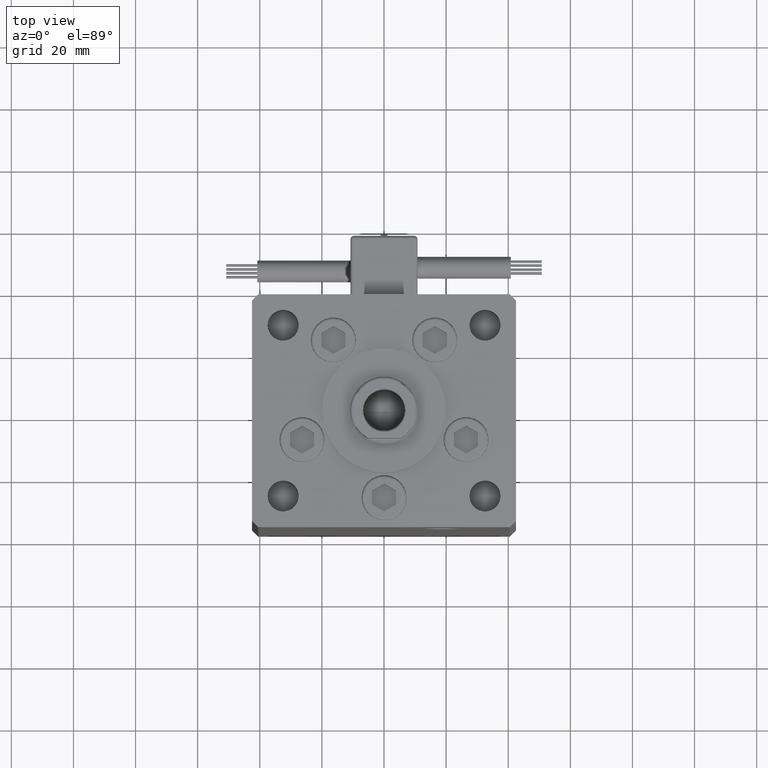
[diagram: clean part render]
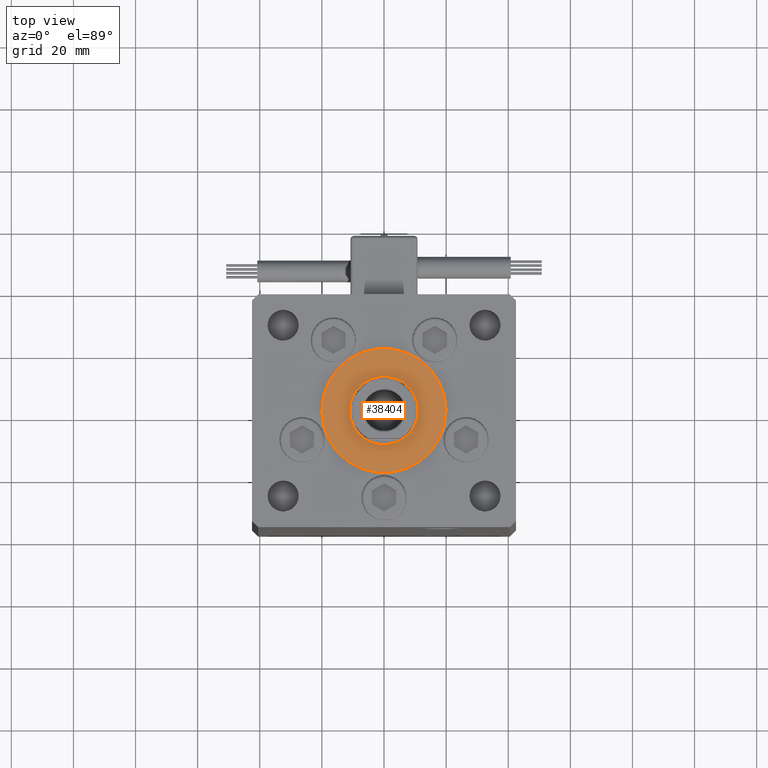
[diagram: same view with one face highlighted and labeled with its STEP entity id]
A machine part, top view. The second image highlights one B-rep face of the part: STEP entity #38404.
In plain terms, the highlighted planar face has unit normal (0, 0, 1).
Its self-contained STEP definition (entity closure, byte-faithful):
#698 = AXIS2_PLACEMENT_3D ( 'NONE', #19274, #40213, #39941 ) ;
#2296 = ORIENTED_EDGE ( 'NONE', *, *, #55220, .F. ) ;
#2892 = VERTEX_POINT ( 'NONE', #17653 ) ;
#4993 = EDGE_CURVE ( 'NONE', #45554, #34722, #10840, .T. ) ;
#5245 = EDGE_CURVE ( 'NONE', #43427, #2892, #28718, .T. ) ;
#10518 = CIRCLE ( 'NONE', #698, 20.00000000000000000 ) ;
#10840 = CIRCLE ( 'NONE', #42021, 11.00000000000000000 ) ;
#11243 = DIRECTION ( 'NONE',  ( 1.000000000000000000, 0.000000000000000000, 0.000000000000000000 ) ) ;
#13220 = CARTESIAN_POINT ( 'NONE',  ( -20.00000000000000000, -6.938893903907228378E-15, 2.000000000000000000 ) ) ;
#13808 = ORIENTED_EDGE ( 'NONE', *, *, #5245, .T. ) ;
#14131 = CARTESIAN_POINT ( 'NONE',  ( 0.000000000000000000, -6.938893903907228378E-15, 2.000000000000000000 ) ) ;
#14285 = CARTESIAN_POINT ( 'NONE',  ( 0.000000000000000000, -6.938893903907228378E-15, 2.000000000000000000 ) ) ;
#16942 = DIRECTION ( 'NONE',  ( 0.000000000000000000, 0.000000000000000000, 1.000000000000000000 ) ) ;
#17491 = CARTESIAN_POINT ( 'NONE',  ( 0.000000000000000000, -6.938893903907228378E-15, 2.000000000000000000 ) ) ;
#17653 = CARTESIAN_POINT ( 'NONE',  ( 20.00000000000000000, -4.489600305612522259E-15, 2.000000000000000000 ) ) ;
#19274 = CARTESIAN_POINT ( 'NONE',  ( 0.000000000000000000, -6.938893903907228378E-15, 2.000000000000000000 ) ) ;
#19683 = ORIENTED_EDGE ( 'NONE', *, *, #4993, .F. ) ;
#22925 = PLANE ( 'NONE',  #44287 ) ;
#23415 = ORIENTED_EDGE ( 'NONE', *, *, #25247, .T. ) ;
#24080 = EDGE_LOOP ( 'NONE', ( #2296, #19683 ) ) ;
#25247 = EDGE_CURVE ( 'NONE', #2892, #43427, #10518, .T. ) ;
#27426 = CARTESIAN_POINT ( 'NONE',  ( 11.00000000000000000, -6.938893903907228378E-15, 2.000000000000000000 ) ) ;
#27512 = DIRECTION ( 'NONE',  ( 0.000000000000000000, 0.000000000000000000, 1.000000000000000000 ) ) ;
#27812 = AXIS2_PLACEMENT_3D ( 'NONE', #31906, #32986, #11243 ) ;
#28718 = CIRCLE ( 'NONE', #27812, 20.00000000000000000 ) ;
#31906 = CARTESIAN_POINT ( 'NONE',  ( 0.000000000000000000, -6.938893903907228378E-15, 2.000000000000000000 ) ) ;
#32235 = CIRCLE ( 'NONE', #51877, 11.00000000000000000 ) ;
#32393 = DIRECTION ( 'NONE',  ( 0.000000000000000000, 0.000000000000000000, 1.000000000000000000 ) ) ;
#32986 = DIRECTION ( 'NONE',  ( 0.000000000000000000, 0.000000000000000000, 1.000000000000000000 ) ) ;
#34495 = DIRECTION ( 'NONE',  ( 1.000000000000000000, 0.000000000000000000, 0.000000000000000000 ) ) ;
#34722 = VERTEX_POINT ( 'NONE', #27426 ) ;
#35508 = EDGE_LOOP ( 'NONE', ( #13808, #23415 ) ) ;
#38404 = ADVANCED_FACE ( 'NONE', ( #49154, #40215 ), #22925, .T. ) ;
#39941 = DIRECTION ( 'NONE',  ( 1.000000000000000000, 0.000000000000000000, 0.000000000000000000 ) ) ;
#40213 = DIRECTION ( 'NONE',  ( 0.000000000000000000, 0.000000000000000000, 1.000000000000000000 ) ) ;
#40215 = FACE_OUTER_BOUND ( 'NONE', #35508, .T. ) ;
#42021 = AXIS2_PLACEMENT_3D ( 'NONE', #14131, #27512, #44524 ) ;
#43427 = VERTEX_POINT ( 'NONE', #13220 ) ;
#44287 = AXIS2_PLACEMENT_3D ( 'NONE', #14285, #32393, #53347 ) ;
#44524 = DIRECTION ( 'NONE',  ( 1.000000000000000000, 0.000000000000000000, 0.000000000000000000 ) ) ;
#45554 = VERTEX_POINT ( 'NONE', #48117 ) ;
#48117 = CARTESIAN_POINT ( 'NONE',  ( -11.00000000000000000, -5.591782424845139381E-15, 2.000000000000000000 ) ) ;
#49154 = FACE_BOUND ( 'NONE', #24080, .T. ) ;
#51877 = AXIS2_PLACEMENT_3D ( 'NONE', #17491, #16942, #34495 ) ;
#53347 = DIRECTION ( 'NONE',  ( 1.000000000000000000, 0.000000000000000000, -0.000000000000000000 ) ) ;
#55220 = EDGE_CURVE ( 'NONE', #34722, #45554, #32235, .T. ) ;